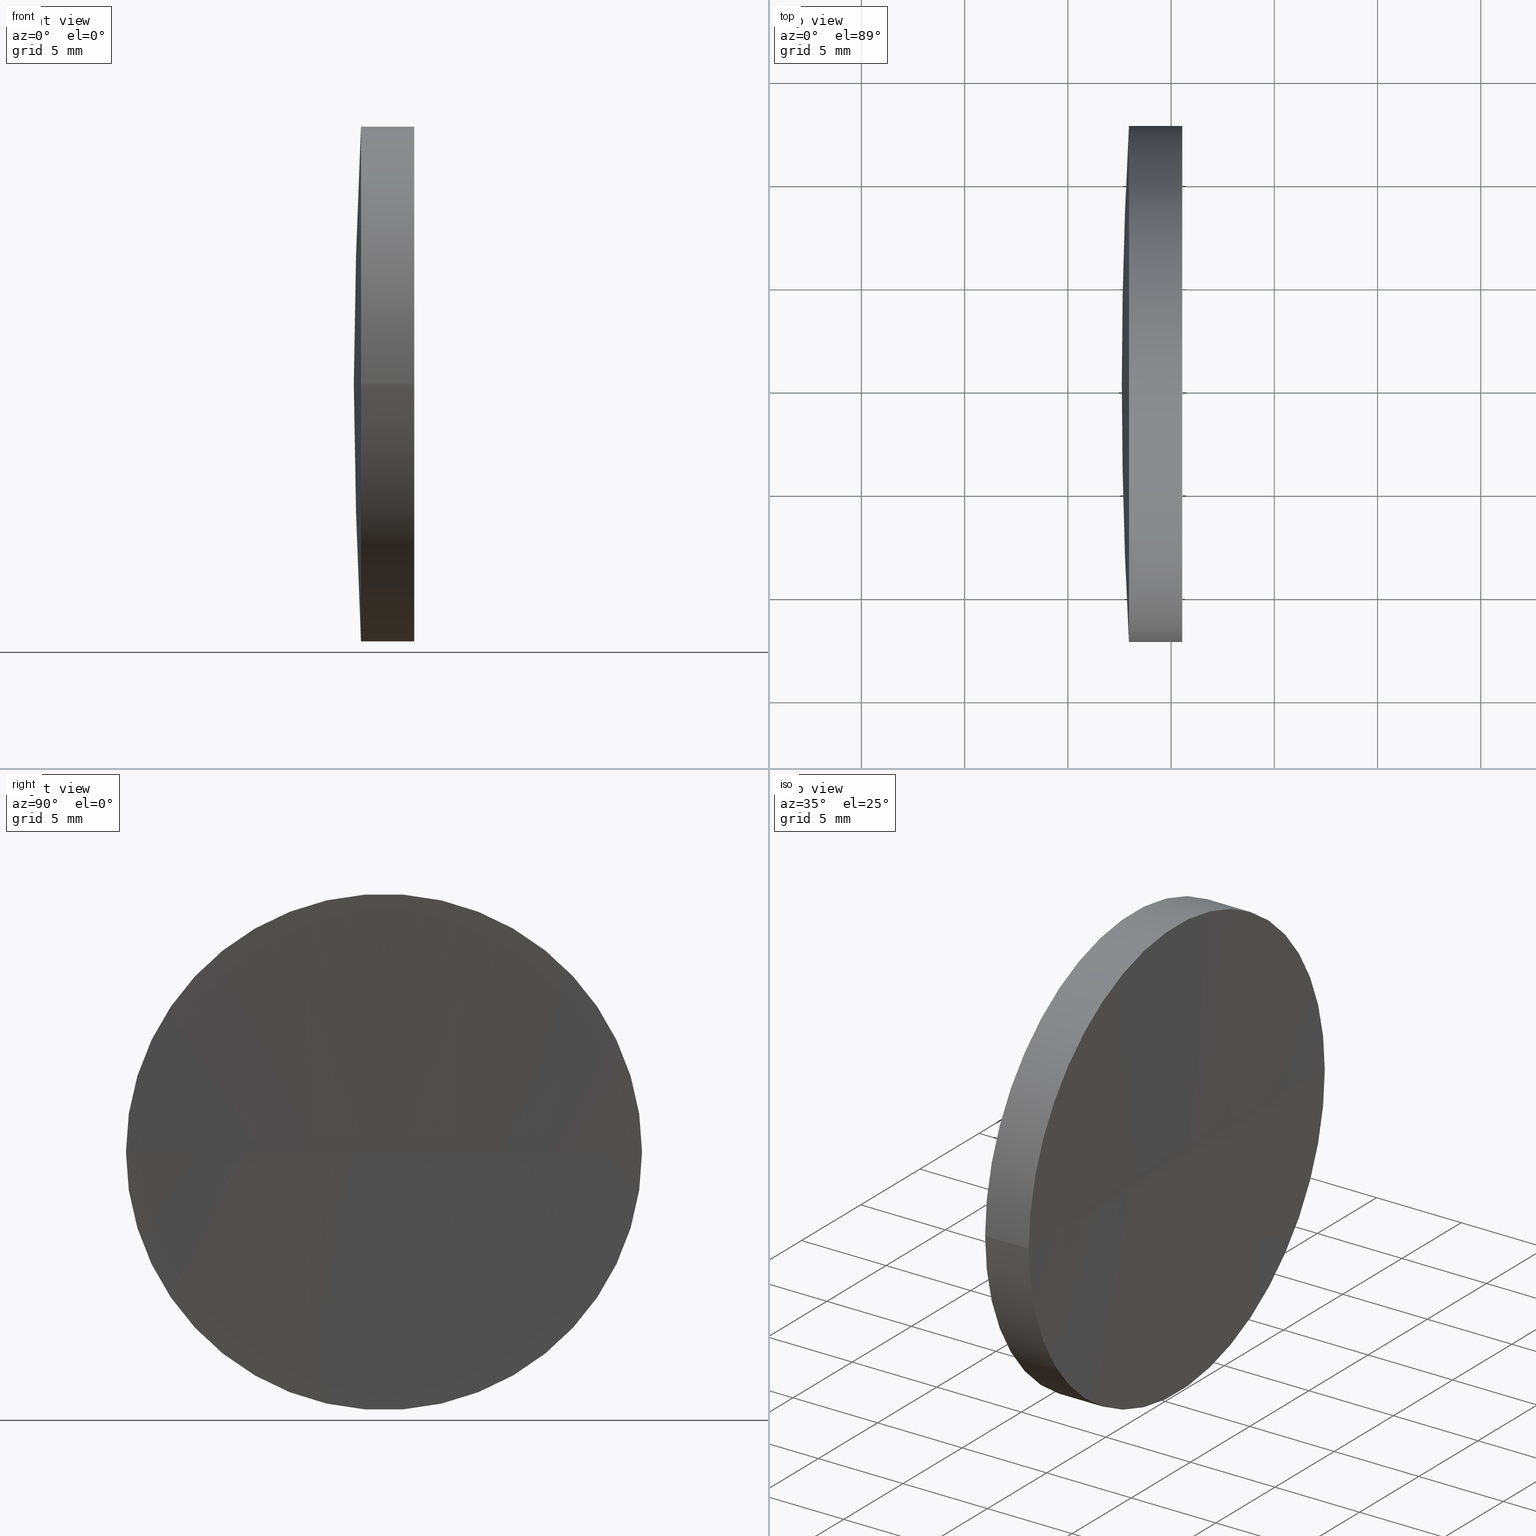
[diagram: canonical four-view strip — front | top / right | iso, engineering-drawing reading convention]
A machine part, canonical four-view strip (front | top / right | iso — engineering-drawing reading convention). The complete STEP part file that produces these views, byte-faithful:
ISO-10303-21;
HEADER;
FILE_DESCRIPTION (( 'STEP AP214' ),
    '1' );
FILE_NAME ('150012.STEP',
    '2019-07-04T07:01:19',
    ( '' ),
    ( '' ),
    'SwSTEP 2.0',
    'SolidWorks 2016',
    '' );
FILE_SCHEMA (( 'AUTOMOTIVE_DESIGN' ));
ENDSEC;

DATA;
#1 = ADVANCED_FACE ( 'NONE', ( #4 ), #151, .T. ) ;
#2 = EDGE_CURVE ( 'NONE', #90, #131, #113, .T. ) ;
#3 = MANIFOLD_SOLID_BREP ( '��ת1', #5 ) ;
#4 = FACE_OUTER_BOUND ( 'NONE', #10, .T. ) ;
#5 = CLOSED_SHELL ( 'NONE', ( #181, #135, #57, #115, #15, #1 ) ) ;
#6 = CIRCLE ( 'NONE', #117, 225.0000000000000300 ) ;
#7 = SURFACE_SIDE_STYLE ('',( #108 ) ) ;
#8 = DIRECTION ( 'NONE',  ( -0.0000000000000000000, 0.0000000000000000000, -1.000000000000000000 ) ) ;
#9 = CARTESIAN_POINT ( 'NONE',  ( 125.4121936935220800, 65.21684047094004200, 0.0000000000000000000 ) ) ;
#10 = EDGE_LOOP ( 'NONE', ( #81, #171, #67, #63 ) ) ;
#11 = AXIS2_PLACEMENT_3D ( 'NONE', #120, #140, #170 ) ;
#12 = FILL_AREA_STYLE ('',( #149 ) ) ;
#13 =( LENGTH_UNIT ( ) NAMED_UNIT ( * ) SI_UNIT ( .MILLI., .METRE. ) );
#14 = PRODUCT_DEFINITION_CONTEXT ( 'detailed design', #83, 'design' ) ;
#15 = ADVANCED_FACE ( 'NONE', ( #82 ), #123, .F. ) ;
#16 = AXIS2_PLACEMENT_3D ( 'NONE', #127, #26, #36 ) ;
#17 = ADVANCED_BREP_SHAPE_REPRESENTATION ( '150012', ( #3, #18 ), #153 ) ;
#18 = AXIS2_PLACEMENT_3D ( 'NONE', #133, #53, #190 ) ;
#19 = EDGE_LOOP ( 'NONE', ( #45, #162, #41, #122 ) ) ;
#20 = CARTESIAN_POINT ( 'NONE',  ( 746.4121936935221100, 65.21684047094044000, 0.0000000000000000000 ) ) ;
#21 = AXIS2_PLACEMENT_3D ( 'NONE', #60, #156, #78 ) ;
#22 = DIRECTION ( 'NONE',  ( -7.151195005637079400E-016, 1.000000000000000000, 0.0000000000000000000 ) ) ;
#23 = SPHERICAL_SURFACE ( 'NONE', #102, 225.0000000000000300 ) ;
#24 = DIRECTION ( 'NONE',  ( -1.000000000000000000, -6.937607244762875000E-016, -0.0000000000000000000 ) ) ;
#25 = CIRCLE ( 'NONE', #110, 12.50000000000003200 ) ;
#26 = DIRECTION ( 'NONE',  ( -0.0000000000000000000, 0.0000000000000000000, 1.000000000000000000 ) ) ;
#27 = EDGE_CURVE ( 'NONE', #177, #52, #91, .T. ) ;
#28 =( NAMED_UNIT ( * ) PLANE_ANGLE_UNIT ( ) SI_UNIT ( $, .RADIAN. ) );
#29 = ORIENTED_EDGE ( 'NONE', *, *, #27, .T. ) ;
#30 = EDGE_CURVE ( 'NONE', #52, #32, #6, .T. ) ;
#31 = SPHERICAL_SURFACE ( 'NONE', #21, 621.0000000000000000 ) ;
#32 = VERTEX_POINT ( 'NONE', #176 ) ;
#33 = EDGE_CURVE ( 'NONE', #90, #42, #86, .T. ) ;
#34 = DIRECTION ( 'NONE',  ( -0.0000000000000000000, 0.0000000000000000000, -1.000000000000000000 ) ) ;
#35 = DIRECTION ( 'NONE',  ( 1.110223024625153800E-015, -1.000000000000000000, 0.0000000000000000000 ) ) ;
#36 = DIRECTION ( 'NONE',  ( 1.000000000000000000, 0.0000000000000000000, 0.0000000000000000000 ) ) ;
#37 = CIRCLE ( 'NONE', #59, 621.0000000000000000 ) ;
#38 = AXIS2_PLACEMENT_3D ( 'NONE', #20, #43, #22 ) ;
#39 = SURFACE_SIDE_STYLE ('',( #126 ) ) ;
#40 =( NAMED_UNIT ( * ) SI_UNIT ( $, .STERADIAN. ) SOLID_ANGLE_UNIT ( ) );
#41 = ORIENTED_EDGE ( 'NONE', *, *, #65, .F. ) ;
#42 = VERTEX_POINT ( 'NONE', #9 ) ;
#43 = DIRECTION ( 'NONE',  ( 0.0000000000000000000, 0.0000000000000000000, -1.000000000000000000 ) ) ;
#44 = UNCERTAINTY_MEASURE_WITH_UNIT (LENGTH_MEASURE( 1.000000000000000100E-005 ), #132, 'distance_accuracy_value', 'NONE');
#45 = ORIENTED_EDGE ( 'NONE', *, *, #93, .T. ) ;
#46 = FACE_OUTER_BOUND ( 'NONE', #167, .T. ) ;
#47 = CARTESIAN_POINT ( 'NONE',  ( 125.5380115921884700, 65.21684047094032600, 0.0000000000000000000 ) ) ;
#48 = DIRECTION ( 'NONE',  ( -1.000000000000000000, -6.937607244762875000E-016, -0.0000000000000000000 ) ) ;
#49 = DIRECTION ( 'NONE',  ( 1.000000000000000000, 0.0000000000000000000, 0.0000000000000000000 ) ) ;
#50 = DIRECTION ( 'NONE',  ( 1.110223024625153800E-015, -1.000000000000000000, 0.0000000000000000000 ) ) ;
#51 = EDGE_CURVE ( 'NONE', #177, #32, #111, .T. ) ;
#52 = VERTEX_POINT ( 'NONE', #124 ) ;
#53 = DIRECTION ( 'NONE',  ( 0.0000000000000000000, 0.0000000000000000000, 1.000000000000000000 ) ) ;
#54 = DIRECTION ( 'NONE',  ( -8.496118506040342700E-032, 1.224646799147353200E-016, -1.000000000000000000 ) ) ;
#55 = CARTESIAN_POINT ( 'NONE',  ( 115.9444912979631700, 65.21684047094032600, 0.0000000000000000000 ) ) ;
#56 = ORIENTED_EDGE ( 'NONE', *, *, #179, .F. ) ;
#57 = ADVANCED_FACE ( 'NONE', ( #71 ), #23, .T. ) ;
#58 = COLOUR_RGB ( '',1.000000000000000000, 1.000000000000000000, 1.000000000000000000 ) ;
#59 = AXIS2_PLACEMENT_3D ( 'NONE', #164, #54, #163 ) ;
#60 = CARTESIAN_POINT ( 'NONE',  ( 746.4121936935221100, 65.21684047094044000, 0.0000000000000000000 ) ) ;
#61 = FILL_AREA_STYLE ('',( #168 ) ) ;
#62 = SPHERICAL_SURFACE ( 'NONE', #121, 225.0000000000000300 ) ;
#63 = ORIENTED_EDGE ( 'NONE', *, *, #27, .F. ) ;
#64 =( GEOMETRIC_REPRESENTATION_CONTEXT ( 3 ) GLOBAL_UNCERTAINTY_ASSIGNED_CONTEXT ( ( #103 ) ) GLOBAL_UNIT_ASSIGNED_CONTEXT ( ( #13, #28, #112 ) ) REPRESENTATION_CONTEXT ( 'NONE', 'WORKASPACE' ) );
#65 = EDGE_CURVE ( 'NONE', #52, #177, #25, .T. ) ;
#66 = EDGE_CURVE ( 'NONE', #90, #177, #161, .T. ) ;
#67 = ORIENTED_EDGE ( 'NONE', *, *, #79, .T. ) ;
#68 = APPLICATION_CONTEXT ( 'automotive_design' ) ;
#69 = ORIENTED_EDGE ( 'NONE', *, *, #65, .T. ) ;
#70 = STYLED_ITEM ( 'NONE', ( #118 ), #3 ) ;
#71 = FACE_OUTER_BOUND ( 'NONE', #145, .T. ) ;
#72 = ORIENTED_EDGE ( 'NONE', *, *, #2, .F. ) ;
#73 = ORIENTED_EDGE ( 'NONE', *, *, #33, .F. ) ;
#74 = AXIS2_PLACEMENT_3D ( 'NONE', #47, #155, #107 ) ;
#75 = CARTESIAN_POINT ( 'NONE',  ( 746.4121936935221100, 65.21684047094044000, 0.0000000000000000000 ) ) ;
#76 = EDGE_LOOP ( 'NONE', ( #56, #72, #160 ) ) ;
#77 = CARTESIAN_POINT ( 'NONE',  ( 122.9596842541332500, 65.21684047094032600, 0.0000000000000000000 ) ) ;
#78 = DIRECTION ( 'NONE',  ( -7.151195005637079400E-016, 1.000000000000000000, 0.0000000000000000000 ) ) ;
#79 = EDGE_CURVE ( 'NONE', #131, #52, #178, .T. ) ;
#80 = UNCERTAINTY_MEASURE_WITH_UNIT (LENGTH_MEASURE( 1.000000000000000100E-005 ), #185, 'distance_accuracy_value', 'NONE');
#81 = ORIENTED_EDGE ( 'NONE', *, *, #66, .F. ) ;
#82 = FACE_OUTER_BOUND ( 'NONE', #76, .T. ) ;
#83 = APPLICATION_CONTEXT ( 'automotive_design' ) ;
#84 = DIRECTION ( 'NONE',  ( -1.000000000000000000, -6.937607244762875000E-016, -0.0000000000000000000 ) ) ;
#85 = PRODUCT_RELATED_PRODUCT_CATEGORY ( 'part', '', ( #94 ) ) ;
#86 = CIRCLE ( 'NONE', #89, 620.9999999999998900 ) ;
#87 = MECHANICAL_DESIGN_GEOMETRIC_PRESENTATION_REPRESENTATION (  '', ( #70 ), #97 ) ;
#88 = ORIENTED_EDGE ( 'NONE', *, *, #93, .F. ) ;
#89 = AXIS2_PLACEMENT_3D ( 'NONE', #75, #188, #49 ) ;
#90 = VERTEX_POINT ( 'NONE', #96 ) ;
#91 = CIRCLE ( 'NONE', #105, 12.50000000000003200 ) ;
#92 = DIRECTION ( 'NONE',  ( -1.000000000000000000, -6.937607244762875000E-016, -0.0000000000000000000 ) ) ;
#93 = EDGE_CURVE ( 'NONE', #131, #90, #139, .T. ) ;
#94 = PRODUCT ( '150012', '150012', '', ( #180 ) ) ;
#95 = CARTESIAN_POINT ( 'NONE',  ( 115.9444912979631800, 52.71684047094031200, 0.0000000000000000000 ) ) ;
#96 = CARTESIAN_POINT ( 'NONE',  ( 125.5380115921885200, 77.71684047094399300, 0.0000000000000000000 ) ) ;
#97 =( GEOMETRIC_REPRESENTATION_CONTEXT ( 3 ) GLOBAL_UNCERTAINTY_ASSIGNED_CONTEXT ( ( #80 ) ) GLOBAL_UNIT_ASSIGNED_CONTEXT ( ( #185, #159, #174 ) ) REPRESENTATION_CONTEXT ( 'NONE', 'WORKASPACE' ) );
#98 = APPLICATION_PROTOCOL_DEFINITION ( 'draft international standard', 'automotive_design', 1998, #68 ) ;
#99 = SHAPE_DEFINITION_REPRESENTATION ( #129, #17 ) ;
#100 = DIRECTION ( 'NONE',  ( 1.110223024625155000E-015, -1.000000000000000000, 0.0000000000000000000 ) ) ;
#101 = ORIENTED_EDGE ( 'NONE', *, *, #51, .T. ) ;
#102 = AXIS2_PLACEMENT_3D ( 'NONE', #186, #8, #175 ) ;
#103 = UNCERTAINTY_MEASURE_WITH_UNIT (LENGTH_MEASURE( 1.000000000000000100E-005 ), #13, 'distance_accuracy_value', 'NONE');
#104 = DIRECTION ( 'NONE',  ( 1.110223024625155000E-015, -1.000000000000000000, 0.0000000000000000000 ) ) ;
#105 = AXIS2_PLACEMENT_3D ( 'NONE', #77, #92, #35 ) ;
#106 = DIRECTION ( 'NONE',  ( -1.000000000000000000, -6.937607244762875000E-016, -0.0000000000000000000 ) ) ;
#107 = DIRECTION ( 'NONE',  ( 0.0000000000000000000, -1.000000000000000000, 0.0000000000000000000 ) ) ;
#108 = SURFACE_STYLE_FILL_AREA ( #61 ) ;
#109 = CARTESIAN_POINT ( 'NONE',  ( 347.6121936992760800, 65.21684047094009900, 0.0000000000000000000 ) ) ;
#110 = AXIS2_PLACEMENT_3D ( 'NONE', #157, #106, #50 ) ;
#111 = CIRCLE ( 'NONE', #16, 224.9999999999999700 ) ;
#112 =( NAMED_UNIT ( * ) SI_UNIT ( $, .STERADIAN. ) SOLID_ANGLE_UNIT ( ) );
#113 = CIRCLE ( 'NONE', #11, 12.49999999999999100 ) ;
#114 = MECHANICAL_DESIGN_GEOMETRIC_PRESENTATION_REPRESENTATION (  '', ( #138 ), #64 ) ;
#115 = ADVANCED_FACE ( 'NONE', ( #46 ), #62, .T. ) ;
#116 = ORIENTED_EDGE ( 'NONE', *, *, #179, .T. ) ;
#117 = AXIS2_PLACEMENT_3D ( 'NONE', #109, #143, #142 ) ;
#118 = PRESENTATION_STYLE_ASSIGNMENT (( #187 ) ) ;
#119 = ORIENTED_EDGE ( 'NONE', *, *, #51, .F. ) ;
#120 = CARTESIAN_POINT ( 'NONE',  ( 125.5380115921884700, 65.21684047094032600, 0.0000000000000000000 ) ) ;
#121 = AXIS2_PLACEMENT_3D ( 'NONE', #173, #34, #141 ) ;
#122 = ORIENTED_EDGE ( 'NONE', *, *, #79, .F. ) ;
#123 = SPHERICAL_SURFACE ( 'NONE', #38, 621.0000000000000000 ) ;
#124 = CARTESIAN_POINT ( 'NONE',  ( 122.9596842541332500, 52.71684047093991400, -1.530808498934197000E-015 ) ) ;
#125 = CARTESIAN_POINT ( 'NONE',  ( 125.5380115921885200, 52.71684047093635400, -1.530808498934639200E-015 ) ) ;
#126 = SURFACE_STYLE_FILL_AREA ( #12 ) ;
#127 = CARTESIAN_POINT ( 'NONE',  ( 347.6121936992760800, 65.21684047094009900, 0.0000000000000000000 ) ) ;
#128 = CARTESIAN_POINT ( 'NONE',  ( 122.9596842541332500, 77.71684047094036900, 0.0000000000000000000 ) ) ;
#129 = PRODUCT_DEFINITION_SHAPE ( 'NONE', 'NONE',  #152 ) ;
#130 = PRODUCT_DEFINITION_FORMATION_WITH_SPECIFIED_SOURCE ( '�κ�', '', #94, .NOT_KNOWN. ) ;
#131 = VERTEX_POINT ( 'NONE', #125 ) ;
#132 =( LENGTH_UNIT ( ) NAMED_UNIT ( * ) SI_UNIT ( .MILLI., .METRE. ) );
#133 = CARTESIAN_POINT ( 'NONE',  ( 0.0000000000000000000, 0.0000000000000000000, 0.0000000000000000000 ) ) ;
#134 =( NAMED_UNIT ( * ) PLANE_ANGLE_UNIT ( ) SI_UNIT ( $, .RADIAN. ) );
#135 = ADVANCED_FACE ( 'NONE', ( #192 ), #31, .F. ) ;
#136 = EDGE_LOOP ( 'NONE', ( #88, #116, #73 ) ) ;
#137 = VECTOR ( 'NONE', #48, 1000.000000000000000 ) ;
#138 = STYLED_ITEM ( 'NONE', ( #165 ), #17 ) ;
#139 = CIRCLE ( 'NONE', #74, 12.49999999999999100 ) ;
#140 = DIRECTION ( 'NONE',  ( -1.000000000000000000, -6.937607244762875000E-016, -0.0000000000000000000 ) ) ;
#141 = DIRECTION ( 'NONE',  ( -7.401486830834376300E-016, 1.000000000000000000, 0.0000000000000000000 ) ) ;
#142 = DIRECTION ( 'NONE',  ( 0.0000000000000000000, 1.000000000000000000, 1.224646799147353200E-016 ) ) ;
#143 = DIRECTION ( 'NONE',  ( -8.496118506040342700E-032, 1.224646799147353200E-016, -1.000000000000000000 ) ) ;
#144 = CYLINDRICAL_SURFACE ( 'NONE', #146, 12.50000000000001800 ) ;
#145 = EDGE_LOOP ( 'NONE', ( #29, #147, #119 ) ) ;
#146 = AXIS2_PLACEMENT_3D ( 'NONE', #55, #84, #100 ) ;
#147 = ORIENTED_EDGE ( 'NONE', *, *, #30, .T. ) ;
#148 = SURFACE_STYLE_USAGE ( .BOTH. , #39 ) ;
#149 = FILL_AREA_STYLE_COLOUR ( '', #58 ) ;
#150 = VECTOR ( 'NONE', #24, 1000.000000000000000 ) ;
#151 = CYLINDRICAL_SURFACE ( 'NONE', #166, 12.50000000000001800 ) ;
#152 = PRODUCT_DEFINITION ( 'δ֪', '', #130, #14 ) ;
#153 =( GEOMETRIC_REPRESENTATION_CONTEXT ( 3 ) GLOBAL_UNCERTAINTY_ASSIGNED_CONTEXT ( ( #44 ) ) GLOBAL_UNIT_ASSIGNED_CONTEXT ( ( #132, #134, #40 ) ) REPRESENTATION_CONTEXT ( 'NONE', 'WORKASPACE' ) );
#154 = CARTESIAN_POINT ( 'NONE',  ( 115.9444912979631500, 77.71684047094035500, 1.530808498934193700E-015 ) ) ;
#155 = DIRECTION ( 'NONE',  ( -1.000000000000000000, -6.937607244762875000E-016, -0.0000000000000000000 ) ) ;
#156 = DIRECTION ( 'NONE',  ( 0.0000000000000000000, 0.0000000000000000000, -1.000000000000000000 ) ) ;
#157 = CARTESIAN_POINT ( 'NONE',  ( 122.9596842541332500, 65.21684047094032600, 0.0000000000000000000 ) ) ;
#158 = COLOUR_RGB ( '',1.000000000000000000, 1.000000000000000000, 1.000000000000000000 ) ;
#159 =( NAMED_UNIT ( * ) PLANE_ANGLE_UNIT ( ) SI_UNIT ( $, .RADIAN. ) );
#160 = ORIENTED_EDGE ( 'NONE', *, *, #33, .T. ) ;
#161 = LINE ( 'NONE', #154, #150 ) ;
#162 = ORIENTED_EDGE ( 'NONE', *, *, #66, .T. ) ;
#163 = DIRECTION ( 'NONE',  ( 0.0000000000000000000, 1.000000000000000000, 1.224646799147353200E-016 ) ) ;
#164 = CARTESIAN_POINT ( 'NONE',  ( 746.4121936935221100, 65.21684047094044000, 0.0000000000000000000 ) ) ;
#165 = PRESENTATION_STYLE_ASSIGNMENT (( #148 ) ) ;
#166 = AXIS2_PLACEMENT_3D ( 'NONE', #182, #183, #104 ) ;
#167 = EDGE_LOOP ( 'NONE', ( #172, #69, #101 ) ) ;
#168 = FILL_AREA_STYLE_COLOUR ( '', #158 ) ;
#169 = FACE_OUTER_BOUND ( 'NONE', #19, .T. ) ;
#170 = DIRECTION ( 'NONE',  ( 0.0000000000000000000, -1.000000000000000000, 0.0000000000000000000 ) ) ;
#171 = ORIENTED_EDGE ( 'NONE', *, *, #2, .T. ) ;
#172 = ORIENTED_EDGE ( 'NONE', *, *, #30, .F. ) ;
#173 = CARTESIAN_POINT ( 'NONE',  ( 347.6121936992760800, 65.21684047094009900, 0.0000000000000000000 ) ) ;
#174 =( NAMED_UNIT ( * ) SI_UNIT ( $, .STERADIAN. ) SOLID_ANGLE_UNIT ( ) );
#175 = DIRECTION ( 'NONE',  ( -7.401486830834376300E-016, 1.000000000000000000, 0.0000000000000000000 ) ) ;
#176 = CARTESIAN_POINT ( 'NONE',  ( 122.6121936992760600, 65.21684047093997100, 0.0000000000000000000 ) ) ;
#177 = VERTEX_POINT ( 'NONE', #128 ) ;
#178 = LINE ( 'NONE', #95, #137 ) ;
#179 = EDGE_CURVE ( 'NONE', #131, #42, #37, .T. ) ;
#180 = PRODUCT_CONTEXT ( 'NONE', #68, 'mechanical' ) ;
#181 = ADVANCED_FACE ( 'NONE', ( #169 ), #144, .T. ) ;
#182 = CARTESIAN_POINT ( 'NONE',  ( 115.9444912979631700, 65.21684047094032600, 0.0000000000000000000 ) ) ;
#183 = DIRECTION ( 'NONE',  ( -1.000000000000000000, -6.937607244762875000E-016, -0.0000000000000000000 ) ) ;
#184 = PRESENTATION_LAYER_ASSIGNMENT (  '', '', ( #70 ) ) ;
#185 =( LENGTH_UNIT ( ) NAMED_UNIT ( * ) SI_UNIT ( .MILLI., .METRE. ) );
#186 = CARTESIAN_POINT ( 'NONE',  ( 347.6121936992760800, 65.21684047094009900, 0.0000000000000000000 ) ) ;
#187 = SURFACE_STYLE_USAGE ( .BOTH. , #7 ) ;
#188 = DIRECTION ( 'NONE',  ( 0.0000000000000000000, -0.0000000000000000000, 1.000000000000000000 ) ) ;
#189 = PRESENTATION_LAYER_ASSIGNMENT (  '', '', ( #138 ) ) ;
#190 = DIRECTION ( 'NONE',  ( 1.000000000000000000, 0.0000000000000000000, 0.0000000000000000000 ) ) ;
#191 = APPLICATION_PROTOCOL_DEFINITION ( 'draft international standard', 'automotive_design', 1998, #83 ) ;
#192 = FACE_OUTER_BOUND ( 'NONE', #136, .T. ) ;
ENDSEC;
END-ISO-10303-21;
